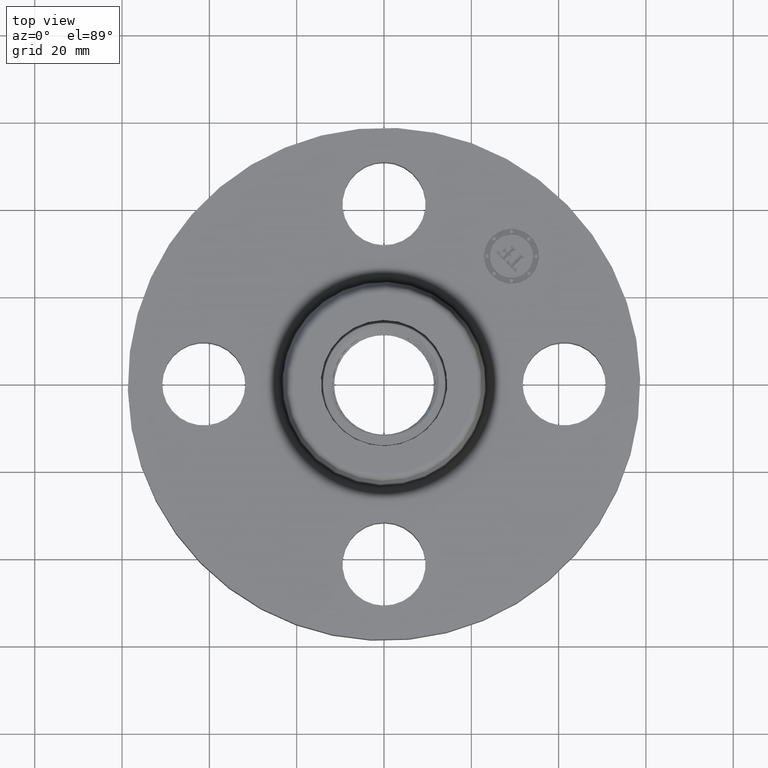
[diagram: clean part render]
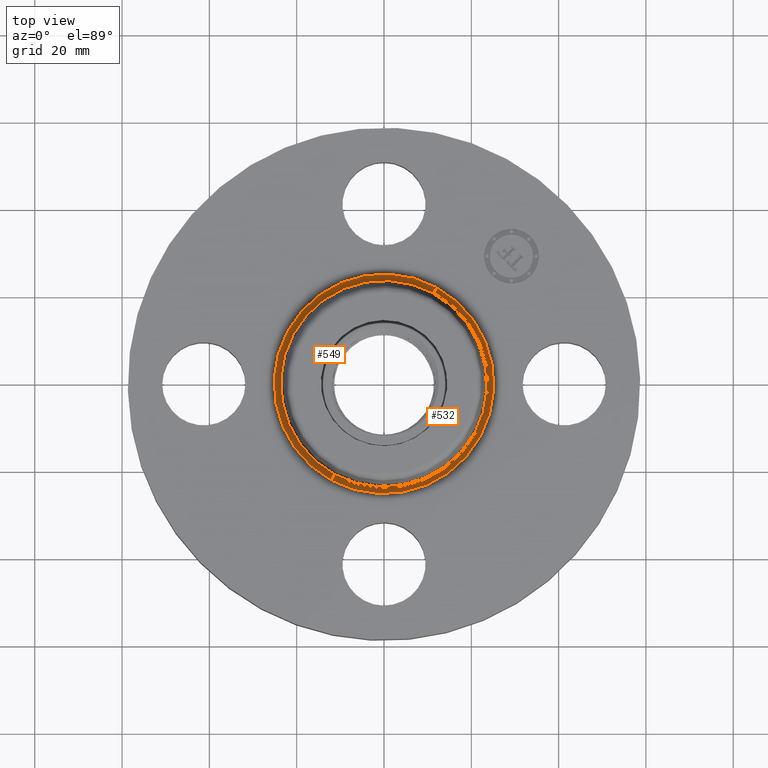
[diagram: same view with one multi-face feature highlighted, each face labeled with its STEP entity id]
A machine part, top view. The highlighted faces form ONE feature: a constant-radius fillet chain: 2 tangent blend faces with common blend radius 1.524 mm. The faces share edges in the B-rep.
Their STEP definitions:
[1] entity #532 (Torus):
#496=AXIS2_PLACEMENT_3D('Torus Axis2P3D',#493,#494,#495) ;
#500=AXIS2_PLACEMENT_3D('Circle Axis2P3D',#498,#499,$) ;
#509=AXIS2_PLACEMENT_3D('Circle Axis2P3D',#507,#508,$) ;
#516=AXIS2_PLACEMENT_3D('Circle Axis2P3D',#514,#515,$) ;
#523=AXIS2_PLACEMENT_3D('Circle Axis2P3D',#521,#522,$) ;
#493=CARTESIAN_POINT('Axis2P3D Location',(0.,0.,0.620000000002)) ;
#498=CARTESIAN_POINT('Axis2P3D Location',(0.,0.,0.560000000002)) ;
#502=CARTESIAN_POINT('Vertex',(0.474797153847,0.869110360421,0.560000000002)) ;
#504=CARTESIAN_POINT('Vertex',(-0.474797153847,-0.869110360421,0.560000000002)) ;
#507=CARTESIAN_POINT('Axis2P3D Location',(0.474797153847,0.869110360421,0.620000000002)) ;
#511=CARTESIAN_POINT('Vertex',(0.446468634602,0.817255353769,0.609581109342)) ;
#514=CARTESIAN_POINT('Axis2P3D Location',(0.,0.,0.609581109342)) ;
#518=CARTESIAN_POINT('Vertex',(-0.446468634602,-0.817255353769,0.609581109342)) ;
#521=CARTESIAN_POINT('Axis2P3D Location',(-0.474797153847,-0.869110360421,0.620000000002)) ;
#494=DIRECTION('Axis2P3D Direction',(0.,0.,-0.0393700787402)) ;
#495=DIRECTION('Axis2P3D XDirection',(-0.0188750212049,-0.0345504945626,0.)) ;
#499=DIRECTION('Axis2P3D Direction',(0.,0.,-0.0393700787402)) ;
#508=DIRECTION('Axis2P3D Direction',(-0.0345504945626,0.0188750212049,0.)) ;
#515=DIRECTION('Axis2P3D Direction',(0.,0.,-0.0393700787402)) ;
#522=DIRECTION('Axis2P3D Direction',(0.0345504945626,-0.0188750212049,0.)) ;
#527=ORIENTED_EDGE('',*,*,#506,.F.) ;
#528=ORIENTED_EDGE('',*,*,#513,.T.) ;
#529=ORIENTED_EDGE('',*,*,#520,.T.) ;
#530=ORIENTED_EDGE('',*,*,#525,.F.) ;
#532=ADVANCED_FACE('PartBody',(#531),#497,.F.) ;
#501=CIRCLE('generated circle',#500,0.990345977875) ;
#510=CIRCLE('generated circle',#509,0.0600000000002) ;
#517=CIRCLE('generated circle',#516,0.931257512694) ;
#524=CIRCLE('generated circle',#523,0.0600000000002) ;
#497=TOROIDAL_SURFACE('homeo Torus',#496,0.990345977875,0.0600000000002) ;
#506=EDGE_CURVE('',#503,#505,#501,.T.) ;
#513=EDGE_CURVE('',#503,#512,#510,.T.) ;
#520=EDGE_CURVE('',#512,#519,#517,.T.) ;
#525=EDGE_CURVE('',#505,#519,#524,.T.) ;
#526=EDGE_LOOP('',(#527,#528,#529,#530)) ;
#531=FACE_OUTER_BOUND('',#526,.T.) ;
#503=VERTEX_POINT('',#502) ;
#505=VERTEX_POINT('',#504) ;
#512=VERTEX_POINT('',#511) ;
#519=VERTEX_POINT('',#518) ;
[2] entity #549 (Torus):
#496=AXIS2_PLACEMENT_3D('Torus Axis2P3D',#493,#494,#495) ;
#509=AXIS2_PLACEMENT_3D('Circle Axis2P3D',#507,#508,$) ;
#523=AXIS2_PLACEMENT_3D('Circle Axis2P3D',#521,#522,$) ;
#535=AXIS2_PLACEMENT_3D('Circle Axis2P3D',#533,#534,$) ;
#540=AXIS2_PLACEMENT_3D('Circle Axis2P3D',#538,#539,$) ;
#493=CARTESIAN_POINT('Axis2P3D Location',(0.,0.,0.620000000002)) ;
#502=CARTESIAN_POINT('Vertex',(0.474797153847,0.869110360421,0.560000000002)) ;
#504=CARTESIAN_POINT('Vertex',(-0.474797153847,-0.869110360421,0.560000000002)) ;
#507=CARTESIAN_POINT('Axis2P3D Location',(0.474797153847,0.869110360421,0.620000000002)) ;
#511=CARTESIAN_POINT('Vertex',(0.446468634602,0.817255353769,0.609581109342)) ;
#518=CARTESIAN_POINT('Vertex',(-0.446468634602,-0.817255353769,0.609581109342)) ;
#521=CARTESIAN_POINT('Axis2P3D Location',(-0.474797153847,-0.869110360421,0.620000000002)) ;
#533=CARTESIAN_POINT('Axis2P3D Location',(0.,0.,0.560000000002)) ;
#538=CARTESIAN_POINT('Axis2P3D Location',(0.,0.,0.609581109342)) ;
#494=DIRECTION('Axis2P3D Direction',(0.,0.,-0.0393700787402)) ;
#495=DIRECTION('Axis2P3D XDirection',(-0.0188750212049,-0.0345504945626,0.)) ;
#508=DIRECTION('Axis2P3D Direction',(-0.0345504945626,0.0188750212049,0.)) ;
#522=DIRECTION('Axis2P3D Direction',(0.0345504945626,-0.0188750212049,0.)) ;
#534=DIRECTION('Axis2P3D Direction',(0.,0.,-0.0393700787402)) ;
#539=DIRECTION('Axis2P3D Direction',(0.,0.,-0.0393700787402)) ;
#544=ORIENTED_EDGE('',*,*,#537,.F.) ;
#545=ORIENTED_EDGE('',*,*,#525,.T.) ;
#546=ORIENTED_EDGE('',*,*,#542,.T.) ;
#547=ORIENTED_EDGE('',*,*,#513,.F.) ;
#549=ADVANCED_FACE('PartBody',(#548),#497,.F.) ;
#510=CIRCLE('generated circle',#509,0.0600000000002) ;
#524=CIRCLE('generated circle',#523,0.0600000000002) ;
#536=CIRCLE('generated circle',#535,0.990345977875) ;
#541=CIRCLE('generated circle',#540,0.931257512694) ;
#497=TOROIDAL_SURFACE('homeo Torus',#496,0.990345977875,0.0600000000002) ;
#513=EDGE_CURVE('',#503,#512,#510,.T.) ;
#525=EDGE_CURVE('',#505,#519,#524,.T.) ;
#537=EDGE_CURVE('',#505,#503,#536,.T.) ;
#542=EDGE_CURVE('',#519,#512,#541,.T.) ;
#543=EDGE_LOOP('',(#544,#545,#546,#547)) ;
#548=FACE_OUTER_BOUND('',#543,.T.) ;
#503=VERTEX_POINT('',#502) ;
#505=VERTEX_POINT('',#504) ;
#512=VERTEX_POINT('',#511) ;
#519=VERTEX_POINT('',#518) ;